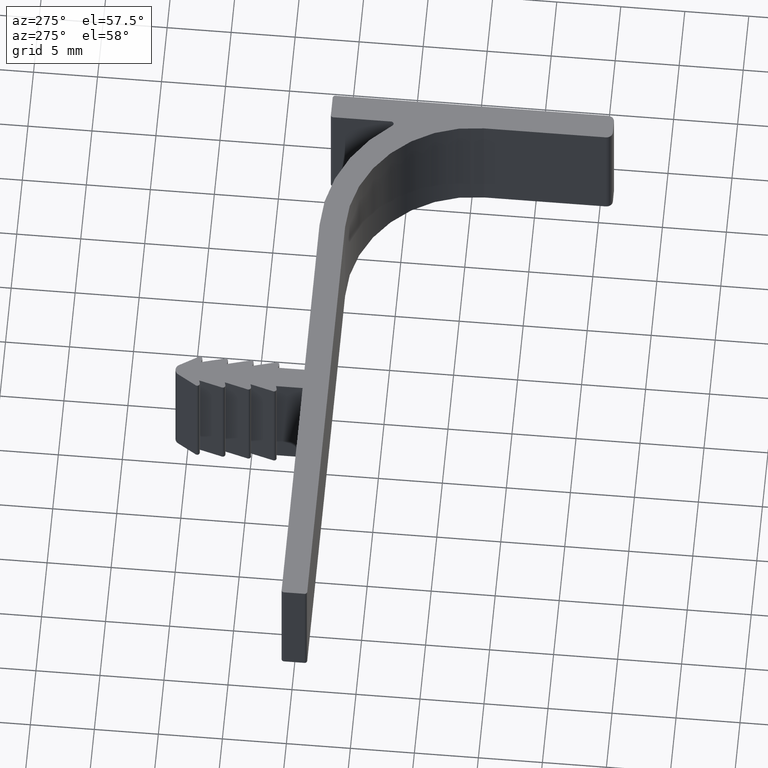
[diagram: clean part render]
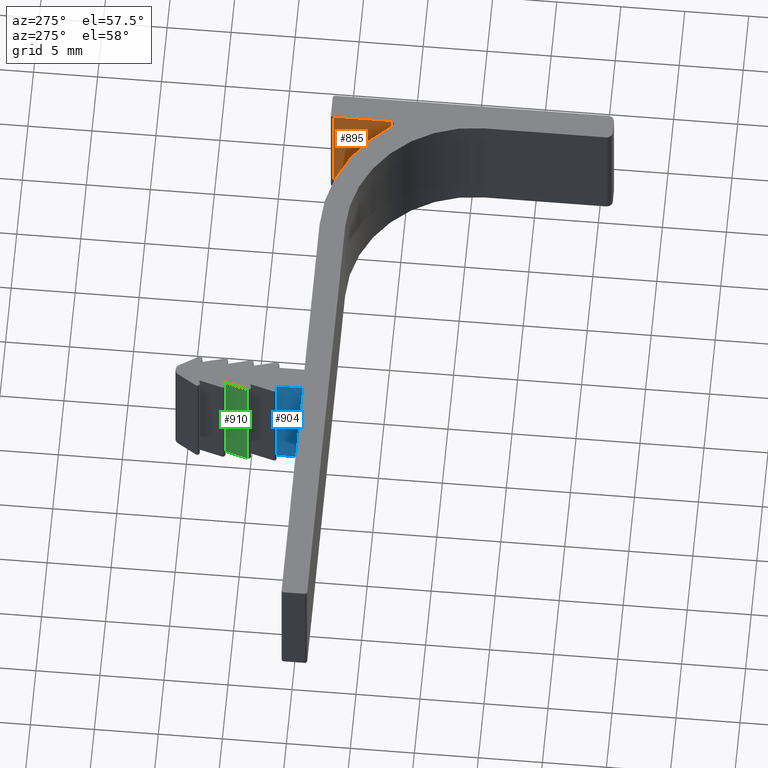
[diagram: same view with three faces highlighted in distinct colors, each labeled with its STEP entity id]
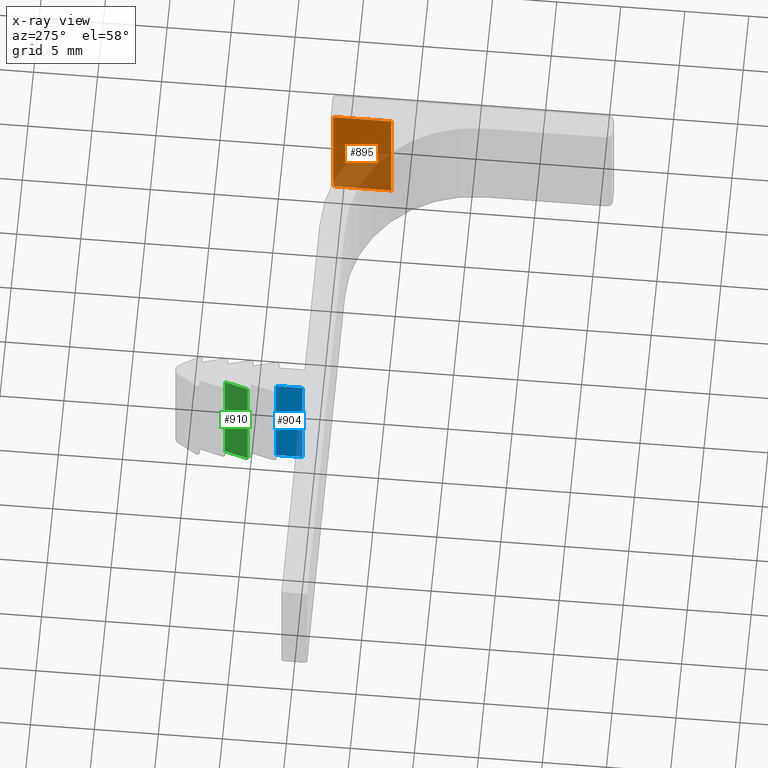
[diagram: x-ray of the same camera — body ghosted, the three highlighted faces saturated]
A machine part, auxiliary view with three faces highlighted in distinct colors.
The next image is the same camera in x-ray (body ghosted, the three faces saturated) — at least one of them is partly hidden behind the body in this view.
Their STEP definitions:

[orange] entity #895 — the highlighted planar face has unit normal (1, 0, 0).
#20=PLANE('',#980);
#54=FACE_OUTER_BOUND('',#101,.T.);
#101=EDGE_LOOP('',(#719,#720,#721,#722));
#168=LINE('',#1384,#267);
#173=LINE('',#1400,#272);
#202=LINE('',#1485,#301);
#203=LINE('',#1487,#302);
#267=VECTOR('',#1091,4.53363915016603);
#272=VECTOR('',#1108,4.53363915016603);
#301=VECTOR('',#1175,10.);
#302=VECTOR('',#1178,10.);
#418=VERTEX_POINT('',#1381);
#419=VERTEX_POINT('',#1383);
#423=VERTEX_POINT('',#1397);
#424=VERTEX_POINT('',#1399);
#510=EDGE_CURVE('',#418,#419,#168,.T.);
#518=EDGE_CURVE('',#423,#424,#173,.T.);
#562=EDGE_CURVE('',#419,#423,#202,.T.);
#563=EDGE_CURVE('',#424,#418,#203,.T.);
#719=ORIENTED_EDGE('',*,*,#562,.F.);
#720=ORIENTED_EDGE('',*,*,#510,.F.);
#721=ORIENTED_EDGE('',*,*,#563,.F.);
#722=ORIENTED_EDGE('',*,*,#518,.F.);
#895=ADVANCED_FACE('',(#54),#20,.F.);
#980=AXIS2_PLACEMENT_3D('',#1486,#1176,#1177);
#1091=DIRECTION('',(0.,1.,0.));
#1108=DIRECTION('',(0.,-1.,0.));
#1175=DIRECTION('',(0.,0.,1.));
#1176=DIRECTION('center_axis',(1.,0.,0.));
#1177=DIRECTION('ref_axis',(0.,0.,-1.));
#1178=DIRECTION('',(0.,0.,-1.));
#1381=CARTESIAN_POINT('',(21.,1.26636084983396,-5.));
#1383=CARTESIAN_POINT('',(21.,5.79999999999999,-5.));
#1384=CARTESIAN_POINT('',(21.,3.13713761086821,-5.));
#1397=CARTESIAN_POINT('',(21.,5.79999999999999,5.));
#1399=CARTESIAN_POINT('',(21.,1.26636084983396,5.));
#1400=CARTESIAN_POINT('',(21.,3.13713761086821,5.));
#1485=CARTESIAN_POINT('',(21.,5.79999999999999,2.5));
#1486=CARTESIAN_POINT('Origin',(21.,0.63324958071078,5.));
#1487=CARTESIAN_POINT('',(21.,1.26636084983396,5.));

[blue] entity #904 — the highlighted planar face has unit normal (1, 0, 0).
#23=PLANE('',#989);
#63=FACE_OUTER_BOUND('',#110,.T.);
#110=EDGE_LOOP('',(#755,#756,#757,#758));
#149=LINE('',#1324,#248);
#172=LINE('',#1395,#271);
#192=LINE('',#1459,#291);
#216=LINE('',#1509,#315);
#248=VECTOR('',#1050,2.07332952164733);
#271=VECTOR('',#1103,10.);
#291=VECTOR('',#1149,2.07332952164733);
#315=VECTOR('',#1209,10.);
#388=VERTEX_POINT('',#1321);
#389=VERTEX_POINT('',#1323);
#422=VERTEX_POINT('',#1393);
#453=VERTEX_POINT('',#1457);
#480=EDGE_CURVE('',#388,#389,#149,.T.);
#516=EDGE_CURVE('',#422,#388,#172,.T.);
#548=EDGE_CURVE('',#453,#422,#192,.T.);
#576=EDGE_CURVE('',#453,#389,#216,.T.);
#755=ORIENTED_EDGE('',*,*,#480,.F.);
#756=ORIENTED_EDGE('',*,*,#516,.F.);
#757=ORIENTED_EDGE('',*,*,#548,.F.);
#758=ORIENTED_EDGE('',*,*,#576,.T.);
#904=ADVANCED_FACE('',(#63),#23,.F.);
#989=AXIS2_PLACEMENT_3D('',#1508,#1207,#1208);
#1050=DIRECTION('',(-3.21286996504939E-15,1.,0.));
#1103=DIRECTION('',(0.,0.,-1.));
#1149=DIRECTION('',(3.21286996504939E-15,-1.,0.));
#1207=DIRECTION('center_axis',(1.,3.21286996504939E-15,0.));
#1208=DIRECTION('ref_axis',(0.,0.,-1.));
#1209=DIRECTION('',(0.,0.,-1.));
#1321=CARTESIAN_POINT('',(-4.09999999999999,5.99999999999999,-5.));
#1323=CARTESIAN_POINT('',(-4.1,8.07332952164732,-5.));
#1324=CARTESIAN_POINT('',(-4.09999999999999,5.8205128205128,-5.));
#1393=CARTESIAN_POINT('',(-4.09999999999999,5.99999999999999,5.));
#1395=CARTESIAN_POINT('',(-4.09999999999999,5.99999999999999,5.));
#1457=CARTESIAN_POINT('',(-4.1,8.07332952164732,5.));
#1459=CARTESIAN_POINT('',(-4.09999999999999,5.8205128205128,5.));
#1508=CARTESIAN_POINT('Origin',(-4.09999999999999,5.99999999999999,5.));
#1509=CARTESIAN_POINT('',(-4.1,8.07332952164732,5.));

[green] entity #910 — the highlighted planar face has unit normal (0.9652, -0.2613, 0).
#27=PLANE('',#995);
#69=FACE_OUTER_BOUND('',#116,.T.);
#116=EDGE_LOOP('',(#779,#780,#781,#782));
#153=LINE('',#1336,#252);
#188=LINE('',#1448,#287);
#223=LINE('',#1522,#322);
#224=LINE('',#1523,#323);
#252=VECTOR('',#1058,1.88662754582758);
#287=VECTOR('',#1141,1.88662754582758);
#322=VECTOR('',#1228,10.);
#323=VECTOR('',#1229,10.);
#394=VERTEX_POINT('',#1333);
#395=VERTEX_POINT('',#1335);
#447=VERTEX_POINT('',#1445);
#448=VERTEX_POINT('',#1447);
#486=EDGE_CURVE('',#394,#395,#153,.T.);
#542=EDGE_CURVE('',#447,#448,#188,.T.);
#583=EDGE_CURVE('',#448,#394,#223,.T.);
#584=EDGE_CURVE('',#447,#395,#224,.T.);
#779=ORIENTED_EDGE('',*,*,#486,.F.);
#780=ORIENTED_EDGE('',*,*,#583,.F.);
#781=ORIENTED_EDGE('',*,*,#542,.F.);
#782=ORIENTED_EDGE('',*,*,#584,.T.);
#910=ADVANCED_FACE('',(#69),#27,.F.);
#995=AXIS2_PLACEMENT_3D('',#1521,#1226,#1227);
#1058=DIRECTION('',(0.261339030899931,0.965247072478485,0.));
#1141=DIRECTION('',(-0.261339030899931,-0.965247072478485,0.));
#1226=DIRECTION('center_axis',(0.965247072478485,-0.261339030899931,0.));
#1227=DIRECTION('ref_axis',(0.,0.,-1.));
#1228=DIRECTION('',(0.,0.,-1.));
#1229=DIRECTION('',(0.,0.,-1.));
#1333=CARTESIAN_POINT('',(-4.59304941449569,10.25226780618,-5.));
#1335=CARTESIAN_POINT('',(-4.1,12.0733295216473,-5.));
#1336=CARTESIAN_POINT('',(-4.82517397492787,9.39492341473583,-5.));
#1445=CARTESIAN_POINT('',(-4.1,12.0733295216473,5.));
#1447=CARTESIAN_POINT('',(-4.59304941449569,10.25226780618,5.));
#1448=CARTESIAN_POINT('',(-4.82517397492787,9.39492341473583,5.));
#1521=CARTESIAN_POINT('Origin',(-4.59304941449569,10.25226780618,5.));
#1522=CARTESIAN_POINT('',(-4.59304941449569,10.25226780618,5.));
#1523=CARTESIAN_POINT('',(-4.1,12.0733295216473,5.));